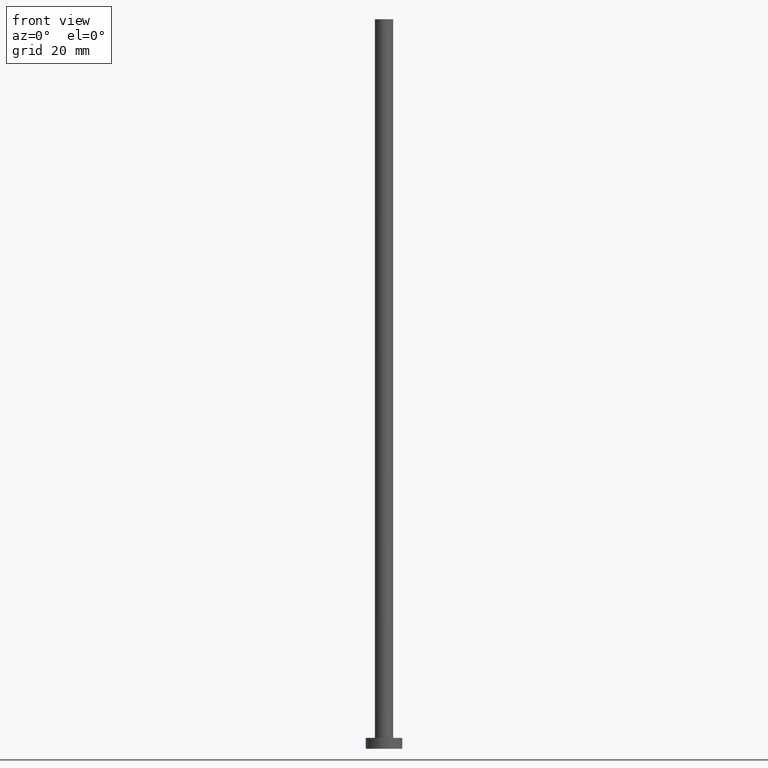
[diagram: clean part render]
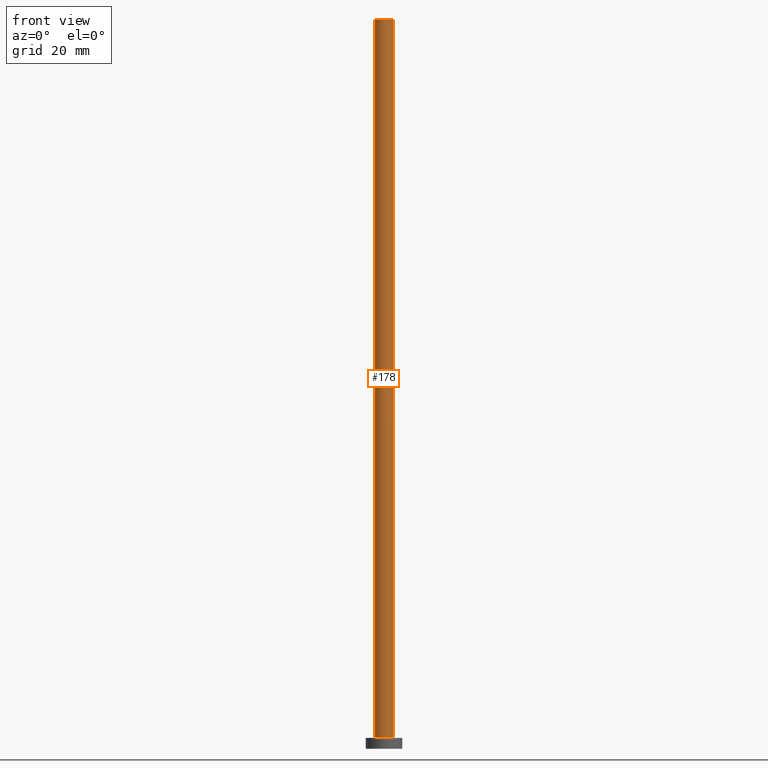
[diagram: same view with one face highlighted and labeled with its STEP entity id]
A machine part, front view. The second image highlights one B-rep face of the part: STEP entity #178.
In plain terms, the highlighted cylindrical surface (edge-blend (fillet) strip) has radius 2.5 mm, axis along (-0, -0, -1).
Its self-contained STEP definition (entity closure, byte-faithful):
#3 = VERTEX_POINT ( 'NONE', #71 ) ;
#6 = DIRECTION ( 'NONE',  ( -0.000000000000000000, -0.000000000000000000, -1.000000000000000000 ) ) ;
#7 = DIRECTION ( 'NONE',  ( 1.000000000000000000, 0.000000000000000000, 0.000000000000000000 ) ) ;
#12 = DIRECTION ( 'NONE',  ( 0.000000000000000000, 0.000000000000000000, 1.000000000000000000 ) ) ;
#23 = EDGE_LOOP ( 'NONE', ( #214, #86, #41, #185 ) ) ;
#24 = DIRECTION ( 'NONE',  ( -1.000000000000000000, 0.000000000000000000, 0.000000000000000000 ) ) ;
#27 = CARTESIAN_POINT ( 'NONE',  ( -2.500000000000000000, 0.000000000000000000, 200.0000000000000000 ) ) ;
#30 = EDGE_CURVE ( 'NONE', #235, #131, #73, .T. ) ;
#31 = EDGE_CURVE ( 'NONE', #131, #3, #218, .T. ) ;
#32 = CARTESIAN_POINT ( 'NONE',  ( 2.500000000000000000, 3.061616997868383141E-16, 200.0000000000000000 ) ) ;
#35 = DIRECTION ( 'NONE',  ( 1.000000000000000000, 0.000000000000000000, 0.000000000000000000 ) ) ;
#37 = VECTOR ( 'NONE', #115, 1000.000000000000000 ) ;
#41 = ORIENTED_EDGE ( 'NONE', *, *, #30, .T. ) ;
#62 = CARTESIAN_POINT ( 'NONE',  ( -2.500000000000000000, 0.000000000000000000, 3.000000000000000000 ) ) ;
#65 = CARTESIAN_POINT ( 'NONE',  ( 2.500000000000000000, 3.061616997868383141E-16, 200.0000000000000000 ) ) ;
#69 = CIRCLE ( 'NONE', #139, 2.500000000000000000 ) ;
#71 = CARTESIAN_POINT ( 'NONE',  ( 2.500000000000000000, 3.061616997868383141E-16, 3.000000000000000000 ) ) ;
#73 = LINE ( 'NONE', #229, #77 ) ;
#77 = VECTOR ( 'NONE', #188, 1000.000000000000000 ) ;
#80 = AXIS2_PLACEMENT_3D ( 'NONE', #224, #12, #35 ) ;
#86 = ORIENTED_EDGE ( 'NONE', *, *, #98, .F. ) ;
#97 = EDGE_CURVE ( 'NONE', #127, #3, #174, .T. ) ;
#98 = EDGE_CURVE ( 'NONE', #235, #127, #69, .T. ) ;
#115 = DIRECTION ( 'NONE',  ( -0.000000000000000000, -0.000000000000000000, -1.000000000000000000 ) ) ;
#127 = VERTEX_POINT ( 'NONE', #65 ) ;
#129 = CYLINDRICAL_SURFACE ( 'NONE', #166, 2.500000000000000000 ) ;
#131 = VERTEX_POINT ( 'NONE', #62 ) ;
#139 = AXIS2_PLACEMENT_3D ( 'NONE', #246, #247, #7 ) ;
#166 = AXIS2_PLACEMENT_3D ( 'NONE', #200, #6, #24 ) ;
#174 = LINE ( 'NONE', #32, #37 ) ;
#178 = ADVANCED_FACE ( 'NONE', ( #221 ), #129, .T. ) ;
#185 = ORIENTED_EDGE ( 'NONE', *, *, #31, .T. ) ;
#188 = DIRECTION ( 'NONE',  ( -0.000000000000000000, -0.000000000000000000, -1.000000000000000000 ) ) ;
#200 = CARTESIAN_POINT ( 'NONE',  ( 0.000000000000000000, 0.000000000000000000, 200.0000000000000000 ) ) ;
#214 = ORIENTED_EDGE ( 'NONE', *, *, #97, .F. ) ;
#218 = CIRCLE ( 'NONE', #80, 2.500000000000000000 ) ;
#221 = FACE_OUTER_BOUND ( 'NONE', #23, .T. ) ;
#224 = CARTESIAN_POINT ( 'NONE',  ( 0.000000000000000000, 0.000000000000000000, 3.000000000000000000 ) ) ;
#229 = CARTESIAN_POINT ( 'NONE',  ( -2.500000000000000000, 0.000000000000000000, 200.0000000000000000 ) ) ;
#235 = VERTEX_POINT ( 'NONE', #27 ) ;
#246 = CARTESIAN_POINT ( 'NONE',  ( 0.000000000000000000, 0.000000000000000000, 200.0000000000000000 ) ) ;
#247 = DIRECTION ( 'NONE',  ( 0.000000000000000000, 0.000000000000000000, 1.000000000000000000 ) ) ;